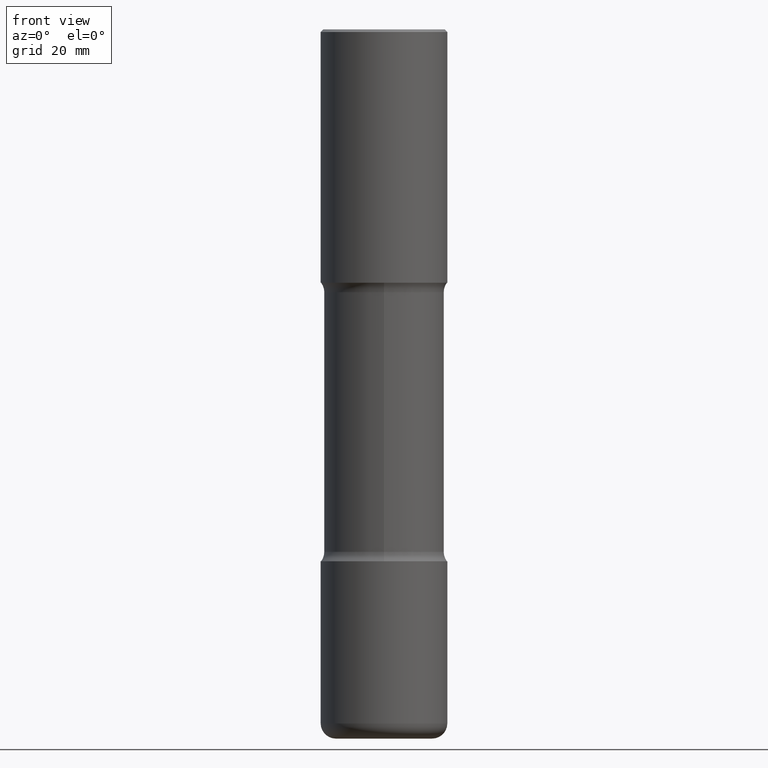
[diagram: clean part render]
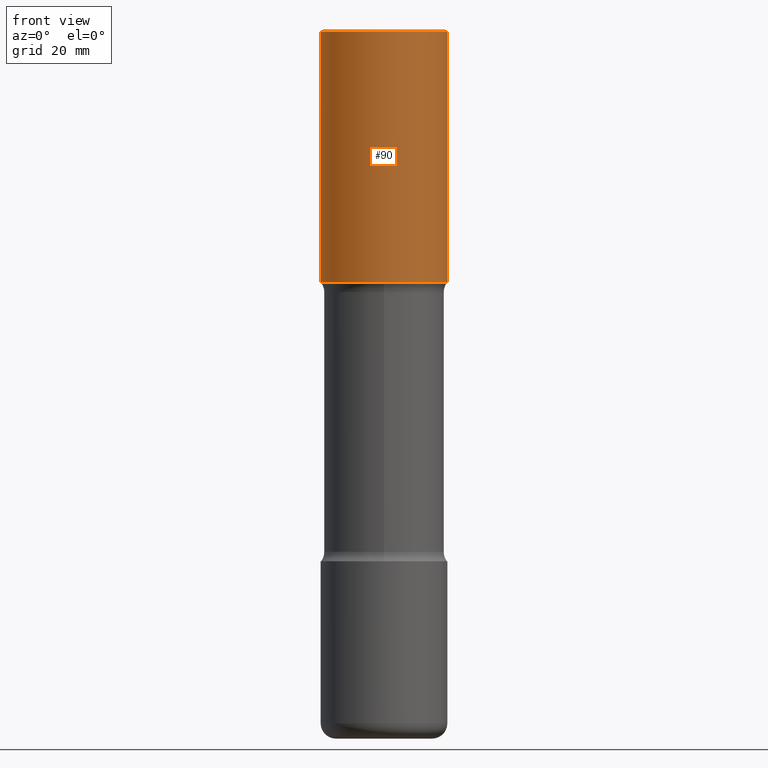
[diagram: same view with one face highlighted and labeled with its STEP entity id]
A machine part, front view. The second image highlights one B-rep face of the part: STEP entity #90.
In plain terms, the highlighted cylindrical surface (partial cylindrical patch) has radius 12.5006 mm, axis along (-0, 0, 1).
Its self-contained STEP definition (entity closure, byte-faithful):
#34 = VERTEX_POINT ( 'NONE', #130 ) ;
#50 = EDGE_CURVE ( 'NONE', #366, #34, #169, .T. ) ;
#59 = CARTESIAN_POINT ( 'NONE',  ( 4.890937612370289799E-31, -6.982962677686315028E-17, -0.02000000000000006981 ) ) ;
#74 = ORIENTED_EDGE ( 'NONE', *, *, #513, .T. ) ;
#84 = LINE ( 'NONE', #228, #415 ) ;
#87 = DIRECTION ( 'NONE',  ( -2.445468806185136877E-29, 3.491481338843145188E-15, 1.000000000000000000 ) ) ;
#90 = ADVANCED_FACE ( 'NONE', ( #487 ), #264, .T. ) ;
#93 = DIRECTION ( 'NONE',  ( -2.445468806185136597E-29, 3.491481338843145583E-15, 1.000000000000000000 ) ) ;
#97 = EDGE_CURVE ( 'NONE', #366, #235, #84, .T. ) ;
#115 = DIRECTION ( 'NONE',  ( 1.000000000000000000, -6.982962677686265922E-15, 0.000000000000000000 ) ) ;
#130 = CARTESIAN_POINT ( 'NONE',  ( 0.4921500000000000874, -1.030964609733602906E-14, -1.968500000000000139 ) ) ;
#133 = VERTEX_POINT ( 'NONE', #349 ) ;
#169 = CIRCLE ( 'NONE', #341, 0.4921500000000000874 ) ;
#193 = VECTOR ( 'NONE', #419, 39.37007874015748143 ) ;
#225 = CIRCLE ( 'NONE', #542, 0.4921499999999998098 ) ;
#228 = CARTESIAN_POINT ( 'NONE',  ( -0.4921499999999999764, 3.496936074043332897E-15, -2.420853904668951509E-29 ) ) ;
#231 = EDGE_CURVE ( 'NONE', #235, #133, #225, .T. ) ;
#235 = VERTEX_POINT ( 'NONE', #456 ) ;
#241 = AXIS2_PLACEMENT_3D ( 'NONE', #478, #526, #529 ) ;
#244 = LINE ( 'NONE', #554, #193 ) ;
#245 = ORIENTED_EDGE ( 'NONE', *, *, #97, .F. ) ;
#255 = CARTESIAN_POINT ( 'NONE',  ( -0.4921500000000000874, 2.553075289853658979E-17, -1.968500000000000139 ) ) ;
#264 = CYLINDRICAL_SURFACE ( 'NONE', #241, 0.4921499999999999764 ) ;
#281 = ORIENTED_EDGE ( 'NONE', *, *, #50, .T. ) ;
#324 = DIRECTION ( 'NONE',  ( -2.445468806185136597E-29, 3.491481338843145583E-15, 1.000000000000000000 ) ) ;
#338 = EDGE_LOOP ( 'NONE', ( #245, #281, #74, #558 ) ) ;
#341 = AXIS2_PLACEMENT_3D ( 'NONE', #383, #93, #396 ) ;
#349 = CARTESIAN_POINT ( 'NONE',  ( 0.4921499999999998098, -3.446223716380121560E-15, -0.02000000000000006981 ) ) ;
#366 = VERTEX_POINT ( 'NONE', #255 ) ;
#383 = CARTESIAN_POINT ( 'NONE',  ( 4.813905344975441835E-29, -6.872981015512731707E-15, -1.968500000000000139 ) ) ;
#396 = DIRECTION ( 'NONE',  ( 1.000000000000000000, -6.982962677686265922E-15, 0.000000000000000000 ) ) ;
#415 = VECTOR ( 'NONE', #87, 39.37007874015748143 ) ;
#419 = DIRECTION ( 'NONE',  ( -2.445468806185136877E-29, 3.491481338843145188E-15, 1.000000000000000000 ) ) ;
#456 = CARTESIAN_POINT ( 'NONE',  ( -0.4921499999999998098, 3.366835455046431295E-15, -0.02000000000000006981 ) ) ;
#478 = CARTESIAN_POINT ( 'NONE',  ( 0.000000000000000000, 0.000000000000000000, 0.000000000000000000 ) ) ;
#487 = FACE_OUTER_BOUND ( 'NONE', #338, .T. ) ;
#513 = EDGE_CURVE ( 'NONE', #34, #133, #244, .T. ) ;
#526 = DIRECTION ( 'NONE',  ( -2.445468806185136597E-29, 3.491481338843145583E-15, 1.000000000000000000 ) ) ;
#529 = DIRECTION ( 'NONE',  ( 1.000000000000000000, -6.982962677686265922E-15, 4.876176775795935793E-29 ) ) ;
#542 = AXIS2_PLACEMENT_3D ( 'NONE', #59, #324, #115 ) ;
#554 = CARTESIAN_POINT ( 'NONE',  ( 0.4921499999999999764, -3.436665081823295777E-15, 2.399810400207969603E-29 ) ) ;
#558 = ORIENTED_EDGE ( 'NONE', *, *, #231, .F. ) ;